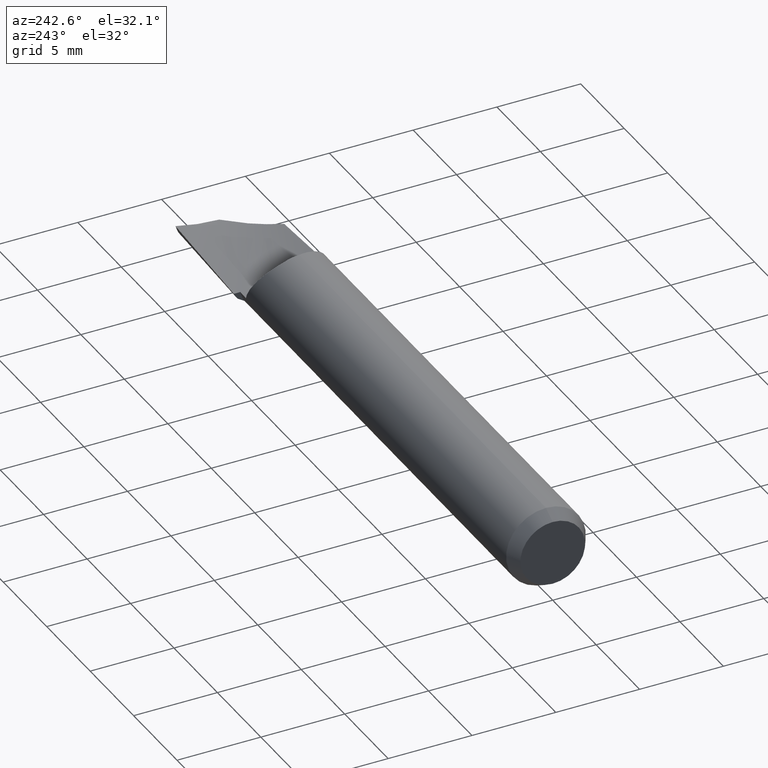
[diagram: clean part render]
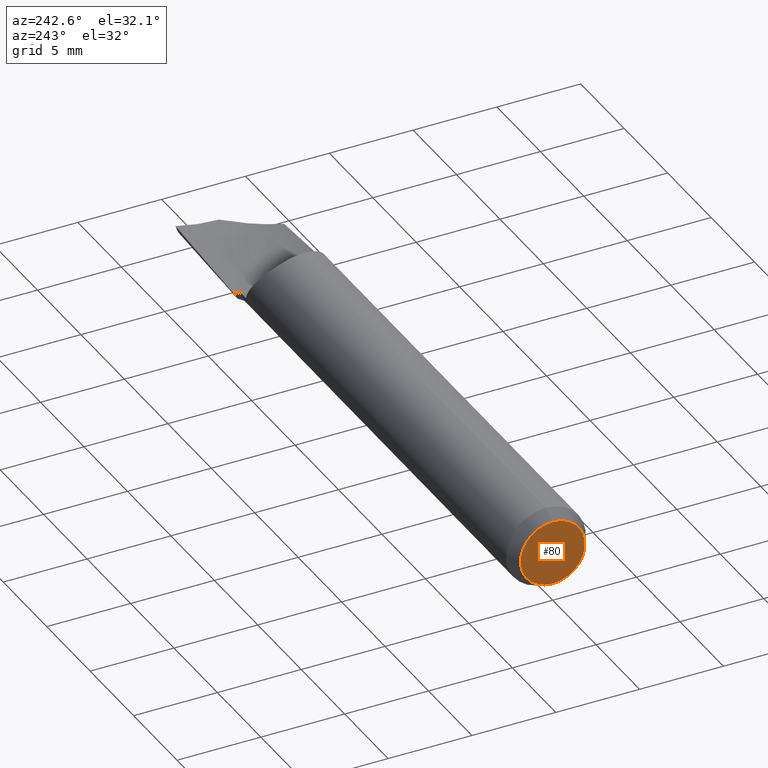
[diagram: same view with one face highlighted and labeled with its STEP entity id]
A machine part, auxiliary view. The second image highlights one B-rep face of the part: STEP entity #80.
In plain terms, the highlighted planar face has unit normal (1, 0, 0).
Its self-contained STEP definition (entity closure, byte-faithful):
#1 = DIRECTION ( 'NONE',  ( -1.000000000000000000, -0.000000000000000000, -0.000000000000000000 ) ) ;
#28 = AXIS2_PLACEMENT_3D ( 'NONE', #676, #1, #101 ) ;
#41 = ORIENTED_EDGE ( 'NONE', *, *, #615, .T. ) ;
#50 = CIRCLE ( 'NONE', #496, 0.07599999999999999811 ) ;
#69 = DIRECTION ( 'NONE',  ( 0.000000000000000000, 0.000000000000000000, -1.000000000000000000 ) ) ;
#80 = ADVANCED_FACE ( 'NONE', ( #589 ), #419, .F. ) ;
#101 = DIRECTION ( 'NONE',  ( 0.000000000000000000, 0.000000000000000000, 1.000000000000000000 ) ) ;
#157 = CARTESIAN_POINT ( 'NONE',  ( 0.000000000000000000, 1.038806647376742246E-17, 0.07599999999999999811 ) ) ;
#180 = CARTESIAN_POINT ( 'NONE',  ( 0.000000000000000000, 0.000000000000000000, -0.07599999999999999811 ) ) ;
#309 = DIRECTION ( 'NONE',  ( 0.000000000000000000, 0.000000000000000000, 1.000000000000000000 ) ) ;
#320 = DIRECTION ( 'NONE',  ( -1.000000000000000000, -0.000000000000000000, -0.000000000000000000 ) ) ;
#329 = CIRCLE ( 'NONE', #28, 0.07599999999999999811 ) ;
#367 = CARTESIAN_POINT ( 'NONE',  ( 0.000000000000000000, 0.000000000000000000, 0.000000000000000000 ) ) ;
#419 = PLANE ( 'NONE',  #432 ) ;
#432 = AXIS2_PLACEMENT_3D ( 'NONE', #539, #633, #69 ) ;
#496 = AXIS2_PLACEMENT_3D ( 'NONE', #367, #320, #309 ) ;
#501 = EDGE_LOOP ( 'NONE', ( #679, #41 ) ) ;
#539 = CARTESIAN_POINT ( 'NONE',  ( 0.000000000000000000, 0.000000000000000000, 0.000000000000000000 ) ) ;
#550 = EDGE_CURVE ( 'NONE', #668, #594, #329, .T. ) ;
#589 = FACE_OUTER_BOUND ( 'NONE', #501, .T. ) ;
#594 = VERTEX_POINT ( 'NONE', #157 ) ;
#615 = EDGE_CURVE ( 'NONE', #594, #668, #50, .T. ) ;
#633 = DIRECTION ( 'NONE',  ( 1.000000000000000000, 0.000000000000000000, 0.000000000000000000 ) ) ;
#668 = VERTEX_POINT ( 'NONE', #180 ) ;
#676 = CARTESIAN_POINT ( 'NONE',  ( 0.000000000000000000, 0.000000000000000000, 0.000000000000000000 ) ) ;
#679 = ORIENTED_EDGE ( 'NONE', *, *, #550, .T. ) ;